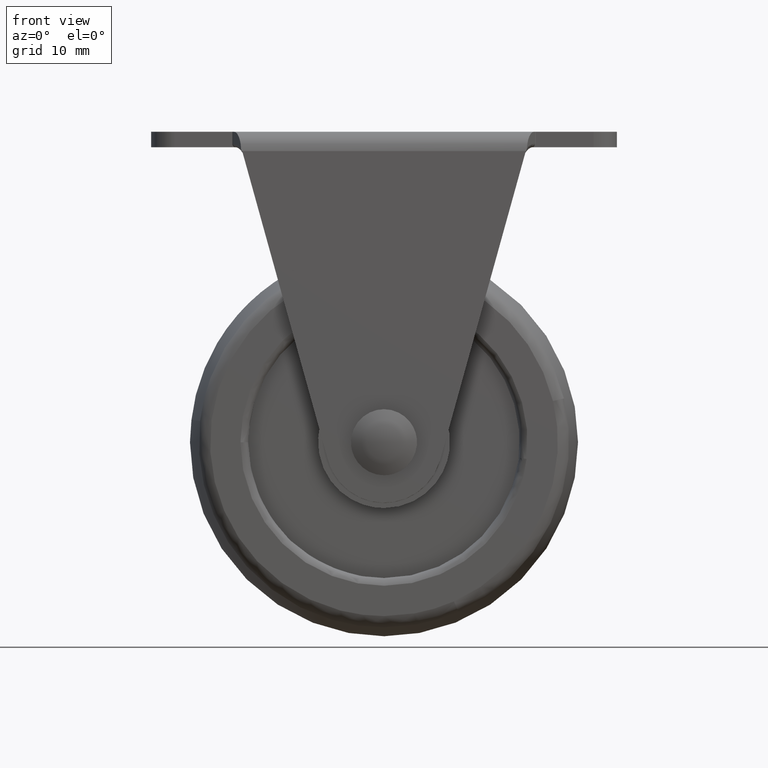
[diagram: clean part render]
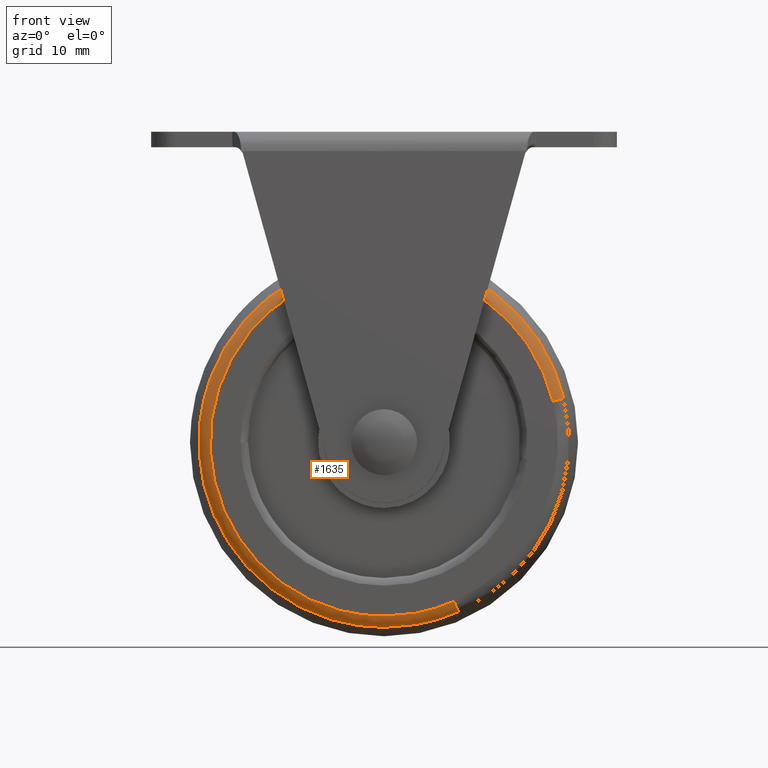
[diagram: same view with one face highlighted and labeled with its STEP entity id]
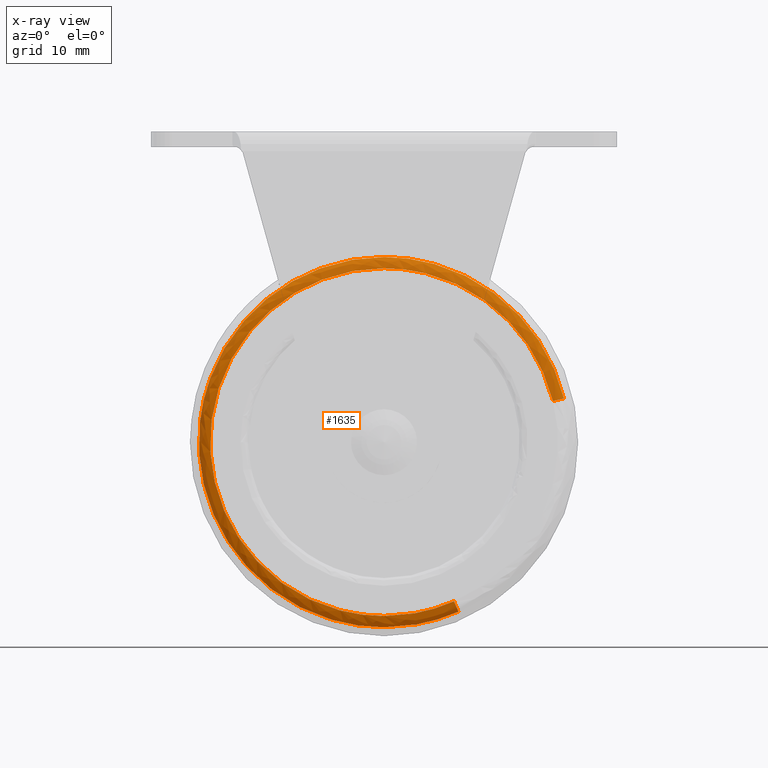
[diagram: x-ray of the same camera — body ghosted, the highlighted face saturated]
A machine part, front view. The second image highlights one B-rep face of the part: STEP entity #1635.
The next image is the same camera in x-ray: the body ghosted, the highlighted face saturated — about 0% of this face is hidden behind the body in this view.
In plain terms, the highlighted face is a freeform B-spline surface patch.
Its self-contained STEP definition (entity closure, byte-faithful):
#1424=CARTESIAN_POINT('',(9.600401625557671,-8.880596457849713,-61.837467277890802));
#1425=VERTEX_POINT('',#1424);
#1426=CARTESIAN_POINT('',(23.177902104769661,-8.880593003205064,-34.358407187405383));
#1427=VERTEX_POINT('',#1426);
#1443=CARTESIAN_POINT('',(21.768149746398961,-10.000000000000011,-34.701546472949907));
#1444=VERTEX_POINT('',#1443);
#1445=CARTESIAN_POINT('',(23.177902104769654,-8.880593003205064,-34.358407187405376));
#1446=CARTESIAN_POINT('',(22.892597717804847,-9.999999599822242,-34.427851400769455));
#1447=CARTESIAN_POINT('',(21.768149746398965,-10.000000000000005,-34.701546472949921));
#1455=(BOUNDED_CURVE()B_SPLINE_CURVE(2,(#1445,#1446,#1447),.UNSPECIFIED.,.F.,.U.)B_SPLINE_CURVE_WITH_KNOTS((3,3),(-1.690748281430412,-0.303340209605683),.UNSPECIFIED.)CURVE()GEOMETRIC_REPRESENTATION_ITEM()RATIONAL_B_SPLINE_CURVE((0.898281292774303,0.711843571792387,0.899876849778820))REPRESENTATION_ITEM(''));
#1456=EDGE_CURVE('',#1427,#1444,#1455,.T.);
#1458=CARTESIAN_POINT('',(9.016487396651066,-10.000000000000011,-60.509239577344637));
#1459=VERTEX_POINT('',#1458);
#1475=CARTESIAN_POINT('',(9.600401625557671,-8.880596457849713,-61.837467277890802));
#1476=CARTESIAN_POINT('',(9.482232437405447,-9.999999596147102,-61.568657946925157));
#1477=CARTESIAN_POINT('',(9.016487396651066,-10.000000000000007,-60.509239577344644));
#1485=(BOUNDED_CURVE()B_SPLINE_CURVE(2,(#1475,#1476,#1477),.UNSPECIFIED.,.F.,.U.)B_SPLINE_CURVE_WITH_KNOTS((3,3),(-1.690745645340852,-0.303340204698913),.UNSPECIFIED.)CURVE()GEOMETRIC_REPRESENTATION_ITEM()RATIONAL_B_SPLINE_CURVE((0.842713802693903,0.667809940795719,0.844211325949920))REPRESENTATION_ITEM(''));
#1486=EDGE_CURVE('',#1425,#1459,#1485,.T.);
#1491=CARTESIAN_POINT('',(23.197663775268381,-8.792265936758565,-34.353597118851660));
#1492=CARTESIAN_POINT('',(17.551260894120045,-8.792265936758561,-11.155933343583284));
#1493=CARTESIAN_POINT('',(-5.646402881148333,-8.792265936758565,-16.802336224731619));
#1494=CARTESIAN_POINT('',(-28.844066656416722,-8.792265936758561,-22.448739105879959));
#1495=CARTESIAN_POINT('',(-23.197663775268381,-8.792265936758565,-45.646402881148333));
#1496=CARTESIAN_POINT('',(-17.551260894120045,-8.792265936758561,-68.844066656416700));
#1497=CARTESIAN_POINT('',(5.646402881148338,-8.792265936758565,-63.197663775268396));
#1498=CARTESIAN_POINT('',(7.686493364946103,-8.792265936758563,-62.701097703050380));
#1499=CARTESIAN_POINT('',(9.608599974148859,-8.792265936758565,-61.856080999653777));
#1500=CARTESIAN_POINT('',(22.949846745839828,-10.076186450872468,-34.413916761489766));
#1501=CARTESIAN_POINT('',(17.363763507329598,-10.076186450872472,-11.464070015649932));
#1502=CARTESIAN_POINT('',(-5.586083238510233,-10.076186450872468,-17.050153254160161));
#1503=CARTESIAN_POINT('',(-28.535929984350069,-10.076186450872472,-22.636236492670406));
#1504=CARTESIAN_POINT('',(-22.949846745839828,-10.076186450872468,-45.586083238510227));
#1505=CARTESIAN_POINT('',(-17.363763507329594,-10.076186450872472,-68.535929984350091));
#1506=CARTESIAN_POINT('',(5.586083238510236,-10.076186450872468,-62.949846745839835));
#1507=CARTESIAN_POINT('',(7.604379753382595,-10.076186450872472,-62.458585411638730));
#1508=CARTESIAN_POINT('',(9.505952797018054,-10.076186450872472,-61.622595890086018));
#1509=CARTESIAN_POINT('',(21.680285755030788,-9.997271729495143,-34.722932915260394));
#1510=CARTESIAN_POINT('',(16.403218670291189,-9.997271729495145,-13.042647160229610));
#1511=CARTESIAN_POINT('',(-5.277067084739603,-9.997271729495143,-18.319714244969212));
#1512=CARTESIAN_POINT('',(-26.957352839770390,-9.997271729495145,-23.596781329708804));
#1513=CARTESIAN_POINT('',(-21.680285755030788,-9.997271729495143,-45.277067084739606));
#1514=CARTESIAN_POINT('',(-16.403218670291171,-9.997271729495145,-66.957352839770394));
#1515=CARTESIAN_POINT('',(5.277067084739606,-9.997271729495143,-61.680285755030788));
#1516=CARTESIAN_POINT('',(7.183713593773372,-9.997271729495141,-61.216200472726747));
#1517=CARTESIAN_POINT('',(8.980093649232941,-9.997271729495141,-60.426456997914222));
#1525=(BOUNDED_SURFACE()B_SPLINE_SURFACE(2,2,((#1491,#1500,#1509),(#1492,#1501,#1510),(#1493,#1502,#1511),(#1494,#1503,#1512),(#1495,#1504,#1513),(#1496,#1505,#1514),(#1497,#1506,#1515),(#1498,#1507,#1516),(#1499,#1508,#1517)),.UNSPECIFIED.,.F.,.F.,.U.)B_SPLINE_SURFACE_WITH_KNOTS((3,2,2,2,3),(3,3),(0.0,39.557320435647128,79.114640871294256,118.671961306941400,123.418839759219000),(0.0,2.249892881532167),.UNSPECIFIED.)GEOMETRIC_REPRESENTATION_ITEM()RATIONAL_B_SPLINE_SURFACE(((0.917841428845535,0.692203868552431,0.919596118108934),(0.649011898390628,0.489462049416986,0.650252651067653),(0.917841428845535,0.692203868552431,0.919596118108934),(0.649011898390628,0.489462049416986,0.650252651067653),(0.917841428845535,0.692203868552431,0.919596118108934),(0.649011898390628,0.489462049416986,0.650252651067653),(0.917841428845535,0.692203868552431,0.919596118108934),(0.885581885190946,0.667874850256178,0.887274902063980),(0.861064632013459,0.649384796351025,0.862710777869815)))REPRESENTATION_ITEM('')SURFACE());
#1526=CARTESIAN_POINT('',(0.0,-8.880597014925520,-63.854615588697747));
#1527=VERTEX_POINT('',#1526);
#1528=CARTESIAN_POINT('',(0.0,-8.880597014925520,-63.854615588697747));
#1529=CARTESIAN_POINT('',(5.012113145660436,-8.880597014925520,-63.854615588697754));
#1530=CARTESIAN_POINT('',(9.600401625557671,-8.880596457849713,-61.837467277890802));
#1538=(BOUNDED_CURVE()B_SPLINE_CURVE(2,(#1528,#1529,#1530),.UNSPECIFIED.,.F.,.U.)B_SPLINE_CURVE_WITH_KNOTS((3,3),(0.0,0.068337898320525),.UNSPECIFIED.)CURVE()GEOMETRIC_REPRESENTATION_ITEM()RATIONAL_B_SPLINE_CURVE((1.0,0.919937171975820,0.883644947157801))REPRESENTATION_ITEM(''));
#1539=EDGE_CURVE('',#1527,#1425,#1538,.T.);
#1540=ORIENTED_EDGE('',*,*,#1539,.T.);
#1541=ORIENTED_EDGE('',*,*,#1486,.T.);
#1542=CARTESIAN_POINT('',(0.0,-10.0,-62.403704000000097));
#1543=VERTEX_POINT('',#1542);
#1544=CARTESIAN_POINT('',(0.0,-10.0,-62.403704000000097));
#1545=CARTESIAN_POINT('',(4.707267735689896,-10.0,-62.403704000000104));
#1546=CARTESIAN_POINT('',(9.016487396651066,-10.000000000000009,-60.509239577344644));
#1554=(BOUNDED_CURVE()B_SPLINE_CURVE(2,(#1544,#1545,#1546),.UNSPECIFIED.,.F.,.U.)B_SPLINE_CURVE_WITH_KNOTS((3,3),(0.0,0.068337989565347),.UNSPECIFIED.)CURVE()GEOMETRIC_REPRESENTATION_ITEM()RATIONAL_B_SPLINE_CURVE((1.0,0.919937065075861,0.883644850243058))REPRESENTATION_ITEM(''));
#1555=EDGE_CURVE('',#1543,#1459,#1554,.T.);
#1556=ORIENTED_EDGE('',*,*,#1555,.F.);
#1557=CARTESIAN_POINT('',(0.0,-10.0,-17.596295999999899));
#1558=VERTEX_POINT('',#1557);
#1559=CARTESIAN_POINT('',(0.0,-10.0,-17.596295999999899));
#1560=CARTESIAN_POINT('',(-22.403704000000101,-10.0,-17.596295999999899));
#1561=CARTESIAN_POINT('',(-22.403704000000101,-10.0,-40.0));
#1562=CARTESIAN_POINT('',(-22.403704000000101,-10.0,-62.403704000000097));
#1563=CARTESIAN_POINT('',(0.0,-10.0,-62.403704000000097));
#1571=(BOUNDED_CURVE()B_SPLINE_CURVE(2,(#1559,#1560,#1561,#1562,#1563),.UNSPECIFIED.,.F.,.U.)B_SPLINE_CURVE_WITH_KNOTS((3,2,3),(0.500000000000000,0.750000000000000,1.0),.UNSPECIFIED.)CURVE()GEOMETRIC_REPRESENTATION_ITEM()RATIONAL_B_SPLINE_CURVE((1.0,0.707106781186547,1.0,0.707106781186547,1.0))REPRESENTATION_ITEM(''));
#1572=EDGE_CURVE('',#1558,#1543,#1571,.T.);
#1573=ORIENTED_EDGE('',*,*,#1572,.F.);
#1574=CARTESIAN_POINT('',(21.768149746398965,-10.000000000000005,-34.701546472949914));
#1575=CARTESIAN_POINT('',(17.604664292719974,-10.0,-17.596295999999896));
#1576=CARTESIAN_POINT('',(0.0,-10.0,-17.596295999999899));
#1584=(BOUNDED_CURVE()B_SPLINE_CURVE(2,(#1574,#1575,#1576),.UNSPECIFIED.,.F.,.U.)B_SPLINE_CURVE_WITH_KNOTS((3,3),(0.290401677695219,0.500000000000000),.UNSPECIFIED.)CURVE()GEOMETRIC_REPRESENTATION_ITEM()RATIONAL_B_SPLINE_CURVE((0.920631806220530,0.754440290889013,1.0))REPRESENTATION_ITEM(''));
#1585=EDGE_CURVE('',#1444,#1558,#1584,.T.);
#1586=ORIENTED_EDGE('',*,*,#1585,.F.);
#1587=ORIENTED_EDGE('',*,*,#1456,.F.);
#1588=CARTESIAN_POINT('',(0.0,-8.880590362582161,-16.145382666290981));
#1589=VERTEX_POINT('',#1588);
#1590=CARTESIAN_POINT('',(23.177902104769650,-8.880593003205064,-34.358407187405390));
#1591=CARTESIAN_POINT('',(18.744780696531269,-8.880590362582161,-16.145382666290978));
#1592=CARTESIAN_POINT('',(0.0,-8.880590362582161,-16.145382666290981));
#1600=(BOUNDED_CURVE()B_SPLINE_CURVE(2,(#1590,#1591,#1592),.UNSPECIFIED.,.F.,.U.)B_SPLINE_CURVE_WITH_KNOTS((3,3),(0.290401670541277,0.500000000000000),.UNSPECIFIED.)CURVE()GEOMETRIC_REPRESENTATION_ITEM()RATIONAL_B_SPLINE_CURVE((0.920631817565320,0.754440282507649,1.0))REPRESENTATION_ITEM(''));
#1601=EDGE_CURVE('',#1427,#1589,#1600,.T.);
#1602=ORIENTED_EDGE('',*,*,#1601,.T.);
#1603=CARTESIAN_POINT('',(-23.695069457747739,-8.880597339478385,-37.245664469434523));
#1604=VERTEX_POINT('',#1603);
#1605=CARTESIAN_POINT('',(0.0,-8.880590362582161,-16.145382666290981));
#1606=CARTESIAN_POINT('',(-21.242354552498732,-8.880593851030273,-16.145383543712086));
#1607=CARTESIAN_POINT('',(-23.695069457747731,-8.880597339478385,-37.245664469434509));
#1615=(BOUNDED_CURVE()B_SPLINE_CURVE(2,(#1605,#1606,#1607),.UNSPECIFIED.,.F.,.U.)B_SPLINE_CURVE_WITH_KNOTS((3,3),(0.500000000000000,0.730000137525707),.UNSPECIFIED.)CURVE()GEOMETRIC_REPRESENTATION_ITEM()RATIONAL_B_SPLINE_CURVE((1.0,0.730538077570235,0.956886388874770))REPRESENTATION_ITEM(''));
#1616=EDGE_CURVE('',#1589,#1604,#1615,.T.);
#1617=ORIENTED_EDGE('',*,*,#1616,.T.);
#1618=CARTESIAN_POINT('',(-23.695069457747731,-8.880597339478385,-37.245664469434509));
#1619=CARTESIAN_POINT('',(-23.854615588697754,-8.880597014925520,-38.618211343831113));
#1620=CARTESIAN_POINT('',(-23.854615588697751,-8.880597014925520,-40.0));
#1621=CARTESIAN_POINT('',(-23.854615588697754,-8.880597014925520,-63.854615588697747));
#1622=CARTESIAN_POINT('',(0.0,-8.880597014925520,-63.854615588697747));
#1630=(BOUNDED_CURVE()B_SPLINE_CURVE(2,(#1618,#1619,#1620,#1621,#1622),.UNSPECIFIED.,.F.,.U.)B_SPLINE_CURVE_WITH_KNOTS((3,2,3),(0.730000137525707,0.750000000000000,1.0),.UNSPECIFIED.)CURVE()GEOMETRIC_REPRESENTATION_ITEM()RATIONAL_B_SPLINE_CURVE((0.956886388874770,0.976568703616312,1.0,0.707106781186548,1.0))REPRESENTATION_ITEM(''));
#1631=EDGE_CURVE('',#1604,#1527,#1630,.T.);
#1632=ORIENTED_EDGE('',*,*,#1631,.T.);
#1633=EDGE_LOOP('',(#1540,#1541,#1556,#1573,#1586,#1587,#1602,#1617,#1632));
#1634=FACE_OUTER_BOUND('',#1633,.T.);
#1635=ADVANCED_FACE('',(#1634),#1525,.T.);